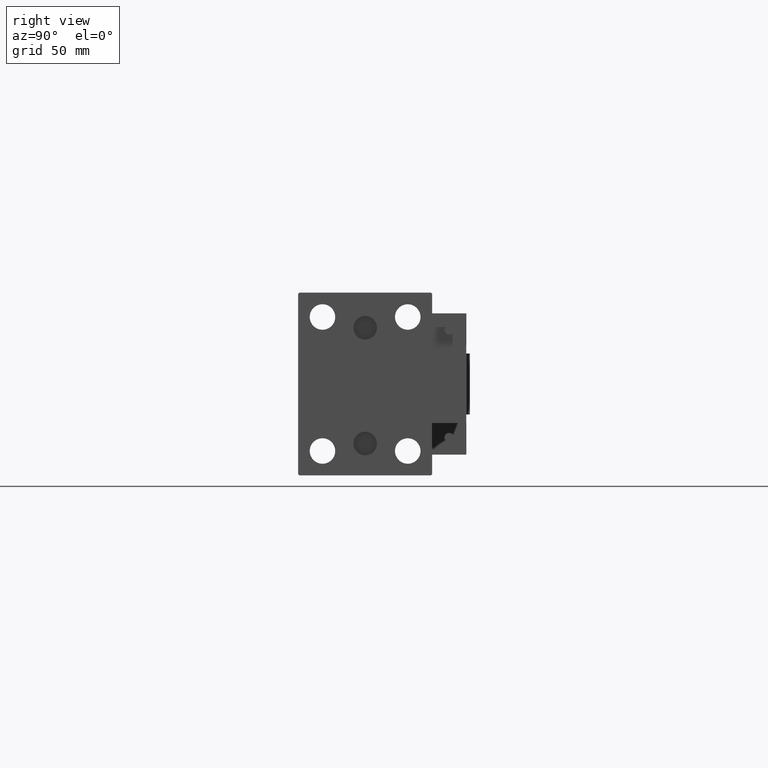
[diagram: clean part render]
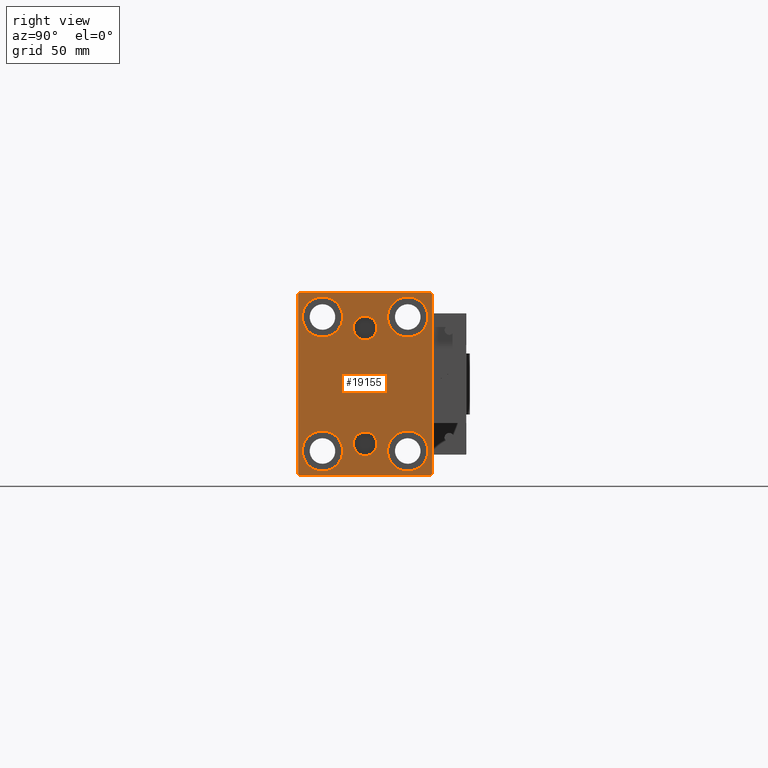
[diagram: same view with one face highlighted and labeled with its STEP entity id]
A machine part, right view. The second image highlights one B-rep face of the part: STEP entity #19155.
In plain terms, the highlighted planar face has unit normal (1, 0, 0).
Its self-contained STEP definition (entity closure, byte-faithful):
#254 = EDGE_CURVE ( 'NONE', #1285, #49150, #41672, .T. ) ;
#341 = CIRCLE ( 'NONE', #8871, 8.250000000000000000 ) ;
#651 = DIRECTION ( 'NONE',  ( 1.000000000000000000, 0.000000000000000000, 0.000000000000000000 ) ) ;
#776 = DIRECTION ( 'NONE',  ( 0.000000000000000000, 0.000000000000000000, 1.000000000000000000 ) ) ;
#920 = DIRECTION ( 'NONE',  ( 0.000000000000000000, 0.000000000000000000, -1.000000000000000000 ) ) ;
#930 = CARTESIAN_POINT ( 'NONE',  ( 155.0000000000000000, 3.595563002296627957E-15, -19.63999999999999346 ) ) ;
#1054 = VERTEX_POINT ( 'NONE', #31060 ) ;
#1094 = CARTESIAN_POINT ( 'NONE',  ( 155.0000000000000000, 3.000384657911015074E-15, -29.35999999999999233 ) ) ;
#1285 = VERTEX_POINT ( 'NONE', #50457 ) ;
#1294 = AXIS2_PLACEMENT_3D ( 'NONE', #19651, #31660, #35920 ) ;
#1368 = EDGE_LOOP ( 'NONE', ( #47519, #36032 ) ) ;
#1482 = VERTEX_POINT ( 'NONE', #1094 ) ;
#1850 = ORIENTED_EDGE ( 'NONE', *, *, #23151, .T. ) ;
#2371 = CARTESIAN_POINT ( 'NONE',  ( 155.0000000000000000, 27.00000000000003197, -37.50000000000000000 ) ) ;
#3013 = ORIENTED_EDGE ( 'NONE', *, *, #27204, .T. ) ;
#3839 = DIRECTION ( 'NONE',  ( -0.000000000000000000, 0.7071067811865474617, -0.7071067811865474617 ) ) ;
#3940 = CARTESIAN_POINT ( 'NONE',  ( 155.0000000000000000, -17.50000000000000355, -27.50000000000000355 ) ) ;
#4204 = CIRCLE ( 'NONE', #19526, 8.249999999999992895 ) ;
#4805 = EDGE_CURVE ( 'NONE', #1054, #24673, #6018, .T. ) ;
#4964 = AXIS2_PLACEMENT_3D ( 'NONE', #19235, #43746, #23507 ) ;
#5246 = CARTESIAN_POINT ( 'NONE',  ( 155.0000000000000000, 17.49999999999999645, -27.50000000000000355 ) ) ;
#5400 = PLANE ( 'NONE',  #23457 ) ;
#5556 = CARTESIAN_POINT ( 'NONE',  ( 155.0000000000000000, -17.50000000000000355, -35.75000000000000711 ) ) ;
#6018 = CIRCLE ( 'NONE', #44297, 8.249999999999992895 ) ;
#6034 = DIRECTION ( 'NONE',  ( -1.000000000000000000, -0.000000000000000000, -0.000000000000000000 ) ) ;
#6192 = FACE_OUTER_BOUND ( 'NONE', #27025, .T. ) ;
#7208 = EDGE_CURVE ( 'NONE', #45642, #38816, #10358, .T. ) ;
#7214 = CIRCLE ( 'NONE', #1294, 8.250000000000000000 ) ;
#7424 = VECTOR ( 'NONE', #3839, 1000.000000000000114 ) ;
#7651 = EDGE_CURVE ( 'NONE', #1482, #32678, #7808, .T. ) ;
#7808 = CIRCLE ( 'NONE', #26595, 4.859999999999999432 ) ;
#7982 = CIRCLE ( 'NONE', #37814, 4.859999999999999432 ) ;
#8329 = DIRECTION ( 'NONE',  ( -0.000000000000000000, -0.7071067811865721087, 0.7071067811865230368 ) ) ;
#8503 = CARTESIAN_POINT ( 'NONE',  ( 155.0000000000000000, -32.25000000000076028, 32.24999999999897682 ) ) ;
#8545 = DIRECTION ( 'NONE',  ( -1.000000000000000000, -0.000000000000000000, -0.000000000000000000 ) ) ;
#8871 = AXIS2_PLACEMENT_3D ( 'NONE', #5246, #6034, #49763 ) ;
#9222 = DIRECTION ( 'NONE',  ( 0.000000000000000000, 0.000000000000000000, 1.000000000000000000 ) ) ;
#9403 = EDGE_LOOP ( 'NONE', ( #9719, #45204 ) ) ;
#9648 = EDGE_CURVE ( 'NONE', #47211, #47363, #21418, .T. ) ;
#9719 = ORIENTED_EDGE ( 'NONE', *, *, #30353, .T. ) ;
#10214 = CARTESIAN_POINT ( 'NONE',  ( 155.0000000000000000, 17.50000000000000355, 27.49999999999999645 ) ) ;
#10358 = CIRCLE ( 'NONE', #40164, 8.249999999999992895 ) ;
#11240 = LINE ( 'NONE', #43759, #13935 ) ;
#11651 = DIRECTION ( 'NONE',  ( -1.000000000000000000, -0.000000000000000000, -0.000000000000000000 ) ) ;
#12017 = CARTESIAN_POINT ( 'NONE',  ( 155.0000000000000000, -17.49999999999999645, 27.49999999999999645 ) ) ;
#12185 = ORIENTED_EDGE ( 'NONE', *, *, #20951, .T. ) ;
#12444 = CARTESIAN_POINT ( 'NONE',  ( 155.0000000000000000, -3.571693674697836683E-15, 18.14000000000000767 ) ) ;
#12729 = CARTESIAN_POINT ( 'NONE',  ( 155.0000000000000000, 27.49999999999999645, 37.00000000000004263 ) ) ;
#13135 = LINE ( 'NONE', #45393, #46719 ) ;
#13196 = ORIENTED_EDGE ( 'NONE', *, *, #47773, .T. ) ;
#13353 = VERTEX_POINT ( 'NONE', #12729 ) ;
#13398 = FACE_BOUND ( 'NONE', #33530, .T. ) ;
#13485 = VERTEX_POINT ( 'NONE', #26590 ) ;
#13935 = VECTOR ( 'NONE', #35786, 1000.000000000000000 ) ;
#14186 = VECTOR ( 'NONE', #28772, 1000.000000000000000 ) ;
#14543 = CARTESIAN_POINT ( 'NONE',  ( 155.0000000000000000, -27.50000000000000355, -37.00000000000000000 ) ) ;
#14742 = DIRECTION ( 'NONE',  ( 0.000000000000000000, 0.000000000000000000, 1.000000000000000000 ) ) ;
#15048 = EDGE_CURVE ( 'NONE', #13485, #25313, #11240, .T. ) ;
#15821 = VERTEX_POINT ( 'NONE', #12444 ) ;
#15996 = EDGE_CURVE ( 'NONE', #42283, #45354, #341, .T. ) ;
#16022 = EDGE_CURVE ( 'NONE', #32678, #1482, #7982, .T. ) ;
#16617 = CARTESIAN_POINT ( 'NONE',  ( 155.0000000000000000, -27.50000000000000355, -37.50000000000000000 ) ) ;
#16770 = LINE ( 'NONE', #44228, #33105 ) ;
#16890 = CIRCLE ( 'NONE', #4964, 4.859999999999999432 ) ;
#17840 = ORIENTED_EDGE ( 'NONE', *, *, #50726, .T. ) ;
#18185 = ORIENTED_EDGE ( 'NONE', *, *, #39056, .T. ) ;
#18793 = CIRCLE ( 'NONE', #44312, 8.250000000000000000 ) ;
#18864 = EDGE_CURVE ( 'NONE', #50154, #13353, #38523, .T. ) ;
#19155 = ADVANCED_FACE ( 'NONE', ( #22205, #13398, #38461, #25686, #46705, #41940, #6192 ), #5400, .T. ) ;
#19235 = CARTESIAN_POINT ( 'NONE',  ( 155.0000000000000000, -3.571693674697836683E-15, 23.00000000000000711 ) ) ;
#19526 = AXIS2_PLACEMENT_3D ( 'NONE', #27917, #11651, #27657 ) ;
#19651 = CARTESIAN_POINT ( 'NONE',  ( 155.0000000000000000, 17.49999999999999645, -27.50000000000000355 ) ) ;
#20420 = ORIENTED_EDGE ( 'NONE', *, *, #15996, .T. ) ;
#20471 = AXIS2_PLACEMENT_3D ( 'NONE', #33191, #651, #920 ) ;
#20653 = CARTESIAN_POINT ( 'NONE',  ( 155.0000000000000000, -32.25000000000000000, -32.25000000000000000 ) ) ;
#20951 = EDGE_CURVE ( 'NONE', #25313, #1285, #40633, .T. ) ;
#21019 = DIRECTION ( 'NONE',  ( 0.000000000000000000, 0.000000000000000000, 1.000000000000000000 ) ) ;
#21181 = CARTESIAN_POINT ( 'NONE',  ( 155.0000000000000000, -17.49999999999999645, 19.25000000000000000 ) ) ;
#21418 = CIRCLE ( 'NONE', #30893, 8.250000000000000000 ) ;
#21679 = CARTESIAN_POINT ( 'NONE',  ( 155.0000000000000000, 0.000000000000000000, 0.000000000000000000 ) ) ;
#22018 = DIRECTION ( 'NONE',  ( -1.000000000000000000, -0.000000000000000000, -0.000000000000000000 ) ) ;
#22205 = FACE_BOUND ( 'NONE', #1368, .T. ) ;
#22791 = CARTESIAN_POINT ( 'NONE',  ( 155.0000000000000000, 27.50000000000000355, -37.50000000000000000 ) ) ;
#22893 = CARTESIAN_POINT ( 'NONE',  ( 155.0000000000000000, 26.99999999999999645, 37.50000000000000711 ) ) ;
#23151 = EDGE_CURVE ( 'NONE', #45354, #42283, #7214, .T. ) ;
#23284 = ORIENTED_EDGE ( 'NONE', *, *, #254, .T. ) ;
#23457 = AXIS2_PLACEMENT_3D ( 'NONE', #21679, #38721, #46975 ) ;
#23507 = DIRECTION ( 'NONE',  ( 0.000000000000000000, 0.000000000000000000, -1.000000000000000000 ) ) ;
#24304 = EDGE_LOOP ( 'NONE', ( #41348, #27672 ) ) ;
#24437 = CIRCLE ( 'NONE', #32091, 8.249999999999992895 ) ;
#24673 = VERTEX_POINT ( 'NONE', #21181 ) ;
#24829 = DIRECTION ( 'NONE',  ( 0.000000000000000000, 0.000000000000000000, 1.000000000000000000 ) ) ;
#24902 = DIRECTION ( 'NONE',  ( 0.000000000000000000, 1.000000000000000000, 0.000000000000000000 ) ) ;
#25143 = LINE ( 'NONE', #32088, #44925 ) ;
#25181 = VECTOR ( 'NONE', #39035, 1000.000000000000000 ) ;
#25313 = VERTEX_POINT ( 'NONE', #14543 ) ;
#25659 = CARTESIAN_POINT ( 'NONE',  ( 155.0000000000000000, -2.976515330312223406E-15, 27.86000000000000654 ) ) ;
#25686 = FACE_BOUND ( 'NONE', #9403, .T. ) ;
#26590 = CARTESIAN_POINT ( 'NONE',  ( 155.0000000000000000, -27.50000000000000355, 37.00000000000000000 ) ) ;
#26595 = AXIS2_PLACEMENT_3D ( 'NONE', #30041, #46290, #776 ) ;
#27025 = EDGE_LOOP ( 'NONE', ( #17840, #3013, #52174, #12185, #23284, #50344, #36282, #13196 ) ) ;
#27204 = EDGE_CURVE ( 'NONE', #34768, #13485, #27725, .T. ) ;
#27360 = CARTESIAN_POINT ( 'NONE',  ( 155.0000000000000000, 3.000384657911015074E-15, -24.49999999999999289 ) ) ;
#27657 = DIRECTION ( 'NONE',  ( 0.000000000000000000, 0.000000000000000000, 1.000000000000000000 ) ) ;
#27672 = ORIENTED_EDGE ( 'NONE', *, *, #7208, .T. ) ;
#27725 = LINE ( 'NONE', #8503, #14186 ) ;
#27917 = CARTESIAN_POINT ( 'NONE',  ( 155.0000000000000000, 17.50000000000000355, 27.49999999999999645 ) ) ;
#28772 = DIRECTION ( 'NONE',  ( 0.000000000000000000, -0.7071067811865279218, -0.7071067811865671127 ) ) ;
#28960 = CIRCLE ( 'NONE', #20471, 4.859999999999999432 ) ;
#29111 = DIRECTION ( 'NONE',  ( -1.000000000000000000, -0.000000000000000000, -0.000000000000000000 ) ) ;
#30041 = CARTESIAN_POINT ( 'NONE',  ( 155.0000000000000000, 3.000384657911015074E-15, -24.49999999999999289 ) ) ;
#30353 = EDGE_CURVE ( 'NONE', #24673, #1054, #24437, .T. ) ;
#30893 = AXIS2_PLACEMENT_3D ( 'NONE', #3940, #33010, #21019 ) ;
#30905 = CARTESIAN_POINT ( 'NONE',  ( 155.0000000000000000, -17.50000000000000355, -19.25000000000000355 ) ) ;
#31060 = CARTESIAN_POINT ( 'NONE',  ( 155.0000000000000000, -17.49999999999999645, 35.74999999999999289 ) ) ;
#31614 = EDGE_LOOP ( 'NONE', ( #41509, #18185 ) ) ;
#31660 = DIRECTION ( 'NONE',  ( -1.000000000000000000, -0.000000000000000000, -0.000000000000000000 ) ) ;
#32088 = CARTESIAN_POINT ( 'NONE',  ( 155.0000000000000000, 32.24999999999906208, 32.25000000000130029 ) ) ;
#32091 = AXIS2_PLACEMENT_3D ( 'NONE', #37109, #29111, #48556 ) ;
#32548 = CARTESIAN_POINT ( 'NONE',  ( 155.0000000000000000, 17.49999999999999645, -19.25000000000000355 ) ) ;
#32678 = VERTEX_POINT ( 'NONE', #930 ) ;
#33010 = DIRECTION ( 'NONE',  ( -1.000000000000000000, -0.000000000000000000, -0.000000000000000000 ) ) ;
#33105 = VECTOR ( 'NONE', #36257, 1000.000000000000000 ) ;
#33176 = EDGE_LOOP ( 'NONE', ( #1850, #20420 ) ) ;
#33191 = CARTESIAN_POINT ( 'NONE',  ( 155.0000000000000000, -3.571693674697836683E-15, 23.00000000000000711 ) ) ;
#33530 = EDGE_LOOP ( 'NONE', ( #37209, #47005 ) ) ;
#33819 = CARTESIAN_POINT ( 'NONE',  ( 155.0000000000000000, 17.50000000000000355, 19.25000000000000000 ) ) ;
#33956 = DIRECTION ( 'NONE',  ( -1.000000000000000000, -0.000000000000000000, -0.000000000000000000 ) ) ;
#34768 = VERTEX_POINT ( 'NONE', #35897 ) ;
#35226 = EDGE_CURVE ( 'NONE', #49150, #50154, #13135, .T. ) ;
#35786 = DIRECTION ( 'NONE',  ( 0.000000000000000000, 0.000000000000000000, -1.000000000000000000 ) ) ;
#35897 = CARTESIAN_POINT ( 'NONE',  ( 155.0000000000000000, -27.00000000000003197, 37.50000000000000000 ) ) ;
#35920 = DIRECTION ( 'NONE',  ( 0.000000000000000000, 0.000000000000000000, 1.000000000000000000 ) ) ;
#36032 = ORIENTED_EDGE ( 'NONE', *, *, #48869, .F. ) ;
#36257 = DIRECTION ( 'NONE',  ( 0.000000000000000000, -1.000000000000000000, -1.261617073437677999E-16 ) ) ;
#36282 = ORIENTED_EDGE ( 'NONE', *, *, #18864, .T. ) ;
#37109 = CARTESIAN_POINT ( 'NONE',  ( 155.0000000000000000, -17.49999999999999645, 27.49999999999999645 ) ) ;
#37209 = ORIENTED_EDGE ( 'NONE', *, *, #7651, .F. ) ;
#37412 = DIRECTION ( 'NONE',  ( -0.000000000000000000, 0.7071067811865474617, 0.7071067811865474617 ) ) ;
#37814 = AXIS2_PLACEMENT_3D ( 'NONE', #27360, #43603, #39601 ) ;
#38461 = FACE_BOUND ( 'NONE', #33176, .T. ) ;
#38523 = LINE ( 'NONE', #22791, #25181 ) ;
#38721 = DIRECTION ( 'NONE',  ( 1.000000000000000000, 0.000000000000000000, 0.000000000000000000 ) ) ;
#38816 = VERTEX_POINT ( 'NONE', #33819 ) ;
#39035 = DIRECTION ( 'NONE',  ( 0.000000000000000000, -9.251858538542970348E-17, 1.000000000000000000 ) ) ;
#39056 = EDGE_CURVE ( 'NONE', #47363, #47211, #18793, .T. ) ;
#39601 = DIRECTION ( 'NONE',  ( 0.000000000000000000, 0.000000000000000000, 1.000000000000000000 ) ) ;
#39621 = CARTESIAN_POINT ( 'NONE',  ( 155.0000000000000000, 17.50000000000000355, 35.74999999999999289 ) ) ;
#40164 = AXIS2_PLACEMENT_3D ( 'NONE', #10214, #33956, #14742 ) ;
#40633 = LINE ( 'NONE', #20653, #7424 ) ;
#40950 = EDGE_CURVE ( 'NONE', #15821, #52471, #28960, .T. ) ;
#41224 = CARTESIAN_POINT ( 'NONE',  ( 155.0000000000000000, 27.50000000000000355, -37.00000000000002842 ) ) ;
#41348 = ORIENTED_EDGE ( 'NONE', *, *, #50971, .T. ) ;
#41509 = ORIENTED_EDGE ( 'NONE', *, *, #9648, .T. ) ;
#41527 = CARTESIAN_POINT ( 'NONE',  ( 155.0000000000000000, 17.49999999999999645, -35.75000000000000711 ) ) ;
#41672 = LINE ( 'NONE', #16617, #50120 ) ;
#41940 = FACE_BOUND ( 'NONE', #31614, .T. ) ;
#42283 = VERTEX_POINT ( 'NONE', #32548 ) ;
#43603 = DIRECTION ( 'NONE',  ( 1.000000000000000000, 0.000000000000000000, -0.000000000000000000 ) ) ;
#43746 = DIRECTION ( 'NONE',  ( 1.000000000000000000, 0.000000000000000000, 0.000000000000000000 ) ) ;
#43759 = CARTESIAN_POINT ( 'NONE',  ( 155.0000000000000000, -27.50000000000000355, 37.50000000000000000 ) ) ;
#44228 = CARTESIAN_POINT ( 'NONE',  ( 155.0000000000000000, 27.49999999999999645, 37.50000000000000711 ) ) ;
#44297 = AXIS2_PLACEMENT_3D ( 'NONE', #12017, #8545, #24829 ) ;
#44312 = AXIS2_PLACEMENT_3D ( 'NONE', #46532, #22018, #9222 ) ;
#44471 = VERTEX_POINT ( 'NONE', #22893 ) ;
#44925 = VECTOR ( 'NONE', #8329, 999.9999999999998863 ) ;
#45204 = ORIENTED_EDGE ( 'NONE', *, *, #4805, .T. ) ;
#45354 = VERTEX_POINT ( 'NONE', #41527 ) ;
#45393 = CARTESIAN_POINT ( 'NONE',  ( 155.0000000000000000, 32.25000000000001421, -32.25000000000001421 ) ) ;
#45642 = VERTEX_POINT ( 'NONE', #39621 ) ;
#46290 = DIRECTION ( 'NONE',  ( 1.000000000000000000, 0.000000000000000000, -0.000000000000000000 ) ) ;
#46532 = CARTESIAN_POINT ( 'NONE',  ( 155.0000000000000000, -17.50000000000000355, -27.50000000000000355 ) ) ;
#46705 = FACE_BOUND ( 'NONE', #24304, .T. ) ;
#46719 = VECTOR ( 'NONE', #37412, 1000.000000000000114 ) ;
#46975 = DIRECTION ( 'NONE',  ( 0.000000000000000000, 0.000000000000000000, -1.000000000000000000 ) ) ;
#47005 = ORIENTED_EDGE ( 'NONE', *, *, #16022, .F. ) ;
#47211 = VERTEX_POINT ( 'NONE', #5556 ) ;
#47363 = VERTEX_POINT ( 'NONE', #30905 ) ;
#47519 = ORIENTED_EDGE ( 'NONE', *, *, #40950, .F. ) ;
#47773 = EDGE_CURVE ( 'NONE', #13353, #44471, #25143, .T. ) ;
#48556 = DIRECTION ( 'NONE',  ( 0.000000000000000000, 0.000000000000000000, 1.000000000000000000 ) ) ;
#48869 = EDGE_CURVE ( 'NONE', #52471, #15821, #16890, .T. ) ;
#49150 = VERTEX_POINT ( 'NONE', #2371 ) ;
#49763 = DIRECTION ( 'NONE',  ( 0.000000000000000000, 0.000000000000000000, 1.000000000000000000 ) ) ;
#50120 = VECTOR ( 'NONE', #24902, 1000.000000000000000 ) ;
#50154 = VERTEX_POINT ( 'NONE', #41224 ) ;
#50344 = ORIENTED_EDGE ( 'NONE', *, *, #35226, .T. ) ;
#50457 = CARTESIAN_POINT ( 'NONE',  ( 155.0000000000000000, -27.00000000000000355, -37.50000000000000000 ) ) ;
#50726 = EDGE_CURVE ( 'NONE', #44471, #34768, #16770, .T. ) ;
#50971 = EDGE_CURVE ( 'NONE', #38816, #45642, #4204, .T. ) ;
#52174 = ORIENTED_EDGE ( 'NONE', *, *, #15048, .T. ) ;
#52471 = VERTEX_POINT ( 'NONE', #25659 ) ;